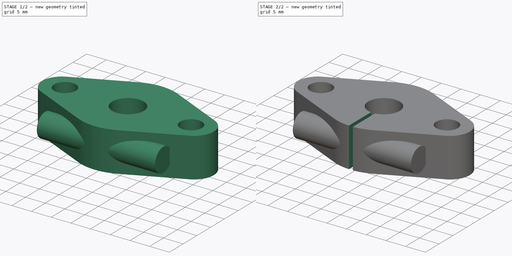
[diagram: build sequence overview — one tinted view per stage of 2, left to right]
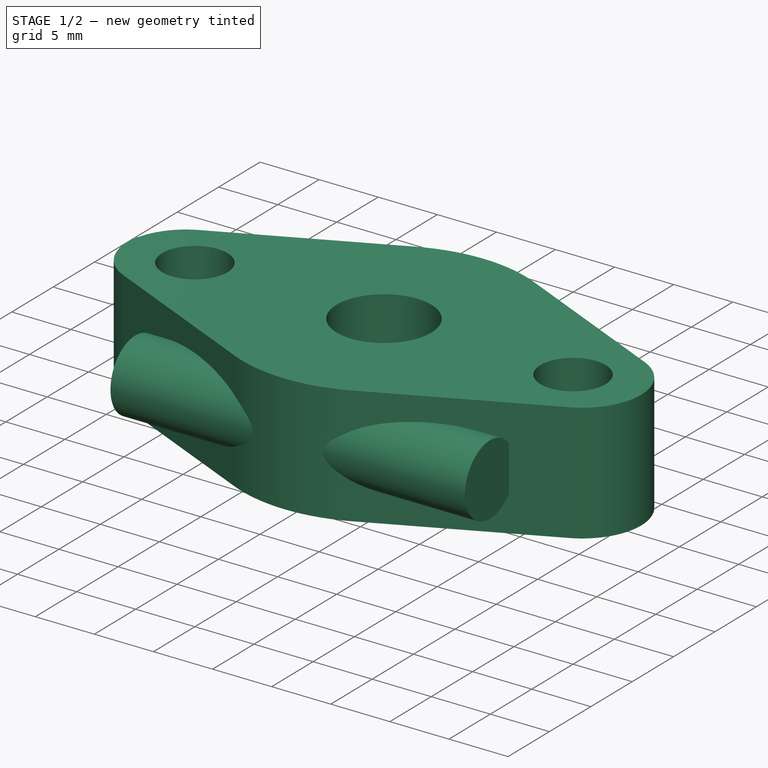
[diagram: stage 1 of 2 — iso view after this stage's code; geometry added in this stage tinted green]
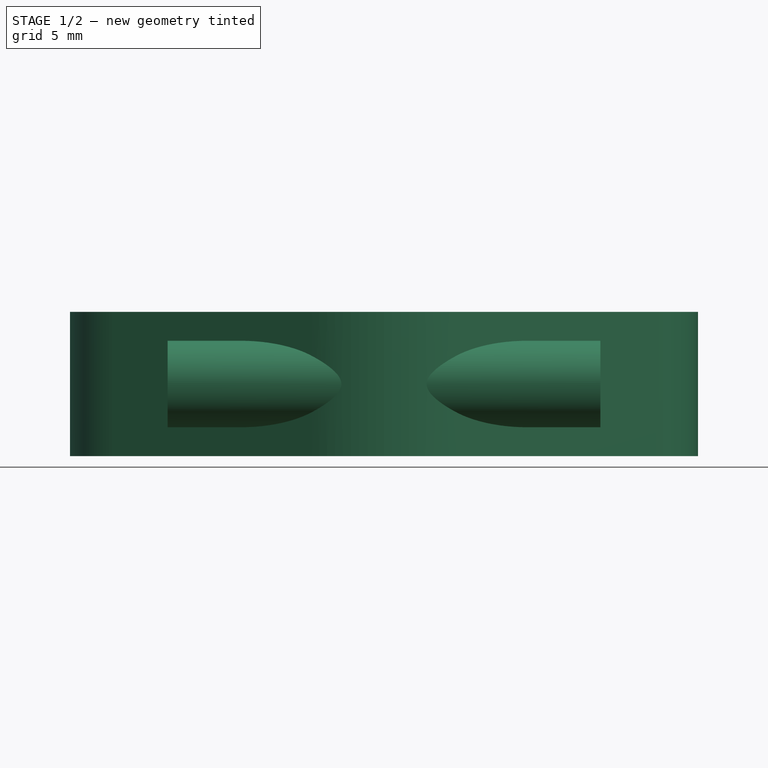
[diagram: stage 1 of 2 — front view after this stage's code; geometry added in this stage tinted green]
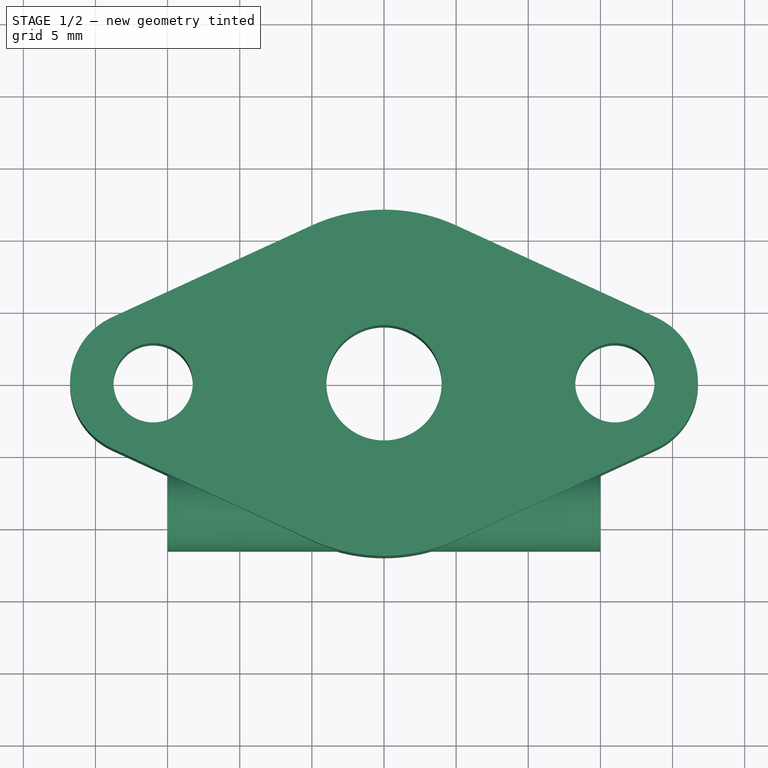
[diagram: stage 1 of 2 — top view after this stage's code; geometry added in this stage tinted green]
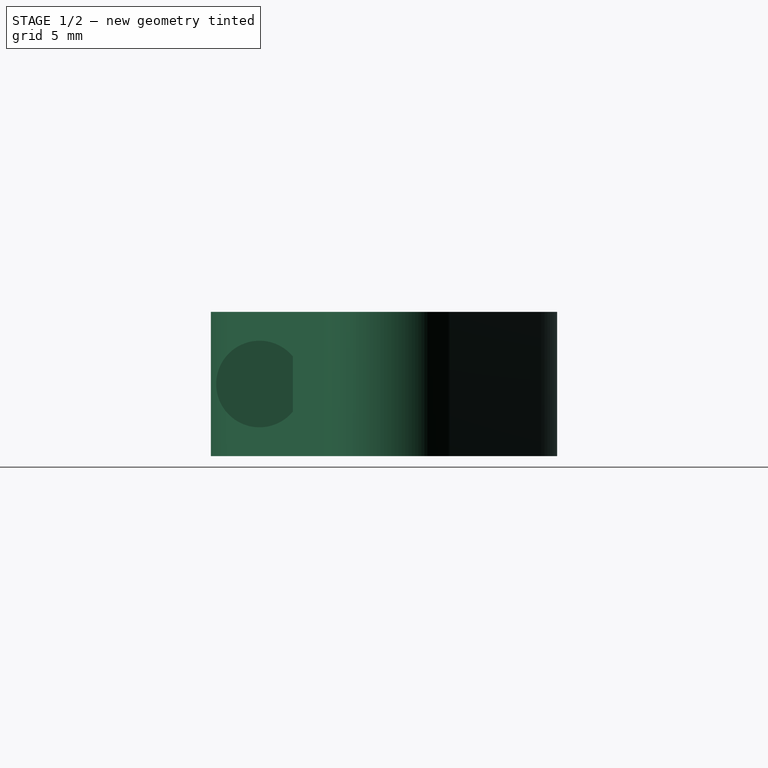
[diagram: stage 1 of 2 — right view after this stage's code; geometry added in this stage tinted green]
FCSTD DOCUMENT  (FreeCAD 0.19R)
Label: support_shaft_horiz_8mm
License: All rights reserved
LicenseURL: http://en.wikipedia.org/wiki/All_rights_reserved
objects: PartDesign::CoordinateSystem×6, Sketcher::SketchObject×3, PartDesign::Pad×2, PartDesign::Pocket×1, PartDesign::Body×1
note: 16 computed .brp shape members not serialized (recipe doc carries the construction recipe); baked Part::Feature solids carry a one-line shape summary decoded from their .brp

FEATURE [Sketcher::SketchObject] Sketch
  FullyConstrained = true
  MapMode = 5
  Support = -> [XY_Plane]
  sketch-geometry (14):
    g0: Circle CenterX=0 CenterY=0 CenterZ=0 NormalX=0 NormalY=0 NormalZ=1 AngleXU=0 Radius=4
    g1: ArcOfCircle CenterX=16.76 CenterY=0 CenterZ=0 NormalX=0 NormalY=0 NormalZ=1 AngleXU=0 Radius=5 StartAngle=5.14326 EndAngle=7.42311
    g2: ArcOfCircle CenterX=-16.76 CenterY=0 CenterZ=0 NormalX=0 NormalY=0 NormalZ=1 AngleXU=0 Radius=5 StartAngle=2.00167 EndAngle=4.28151
    g3: GeomPoint X=-21.76 Y=0 Z=0
    g4: LineSegment StartX=5.01193 StartY=10.9032 StartZ=0 EndX=18.8483 EndY=4.54301 EndZ=0
    g5: LineSegment StartX=-18.8483 StartY=4.54301 StartZ=0 EndX=-5.01193 EndY=10.9032 EndZ=0
    g6: ArcOfCircle CenterX=0 CenterY=0 CenterZ=0 NormalX=0 NormalY=0 NormalZ=1 AngleXU=0 Radius=12 StartAngle=1.13993 EndAngle=2.00167
    g7: ArcOfCircle CenterX=0 CenterY=0 CenterZ=0 NormalX=0 NormalY=0 NormalZ=1 AngleXU=0 Radius=12 StartAngle=4.28152 EndAngle=5.14326
    g8: GeomPoint X=21.76 Y=0 Z=0
    g9: Circle CenterX=-16 CenterY=0 CenterZ=0 NormalX=0 NormalY=0 NormalZ=1 AngleXU=0 Radius=2.75
    g10: Circle CenterX=16 CenterY=0 CenterZ=0 NormalX=0 NormalY=0 NormalZ=1 AngleXU=0 Radius=2.75
    g11: Circle CenterX=0 CenterY=0 CenterZ=0 NormalX=0 NormalY=0 NormalZ=1 AngleXU=0 Radius=12
    g12: LineSegment StartX=-18.8483 StartY=-4.543 StartZ=0 EndX=-5.01194 EndY=-10.9032 EndZ=0
    g13: LineSegment StartX=5.01192 StartY=-10.9032 StartZ=0 EndX=18.8483 EndY=-4.54301 EndZ=0
  constraints (34):
    c: Diameter(g0) = 8
    c: Equal(g2,g1)
    c: PointOnObject(g3,g2)
    c: Tangent(g6,g4) = 1.5708
    c: Tangent(g2,g5) = 1.5708
    c: Tangent(g1,g4) = 1.5708
    c: Coincident(g6,g0)
    c: Horizontal(g3,g0)
    c: Tangent(g6,g5) = 1.5708
    c: Coincident(g7,g0)
    c: Horizontal(g0,g8)
    c: PointOnObject(g8,g1)
    c: DistanceX(g3,g8) = 43.52
    c: Symmetric(g9,g10,g0)
    c: Diameter(g9) = 5.5
    c: Horizontal(g9,g0)
    c: DistanceX(g9,g10) = 32
    c: Coincident(g0,g11)
    c: Diameter(g11) = 24
    c: PointOnObject(g4,g11)
    c: Coincident(g0,g-1)
    c: PointOnObject(g7,g11)
    c: Coincident(g12,g2)
    c: Coincident(g12,g7)
    c: Coincident(g13,g7)
    c: Coincident(g13,g1)
    c: Tangent(g1,g13)
    c: Tangent(g12,g2)
    c: Tangent(g7,g12)
    c: Symmetric(g2,g1,g0)
    c: Horizontal(g1,g0)
    c: Diameter(g1) = 10
    c: Tangent(g13,g7)
    c: Equal(g10,g9)
FEATURE [PartDesign::Pad] Pad
  Direction = (1,1,1)
  Length = 10
  Length2 = 100
  Midplane = true
  Profile = -> Sketch
  Type = 0
FEATURE [Sketcher::SketchObject] Sketch001
  FullyConstrained = true
  MapMode = 5
  Placement = pos=(0,0,0) rot=(0.57735,0.57735,0.57735;2.0944rad)
  Support = -> [YZ_Plane]
  sketch-geometry (1):
    g0: Circle CenterX=-8.63 CenterY=0 CenterZ=0 NormalX=0 NormalY=0 NormalZ=1 AngleXU=0 Radius=3
  constraints (3):
    c: PointOnObject(g0,g-1)
    c: Radius(g0) = 3
    c: DistanceX(g0,g-1) = 8.63
FEATURE [PartDesign::Pad] Pad001
  BaseFeature = -> Pad
  Direction = (1,1,1)
  Length = 30
  Length2 = 100
  Midplane = true
  Profile = -> Sketch001
  Type = 0
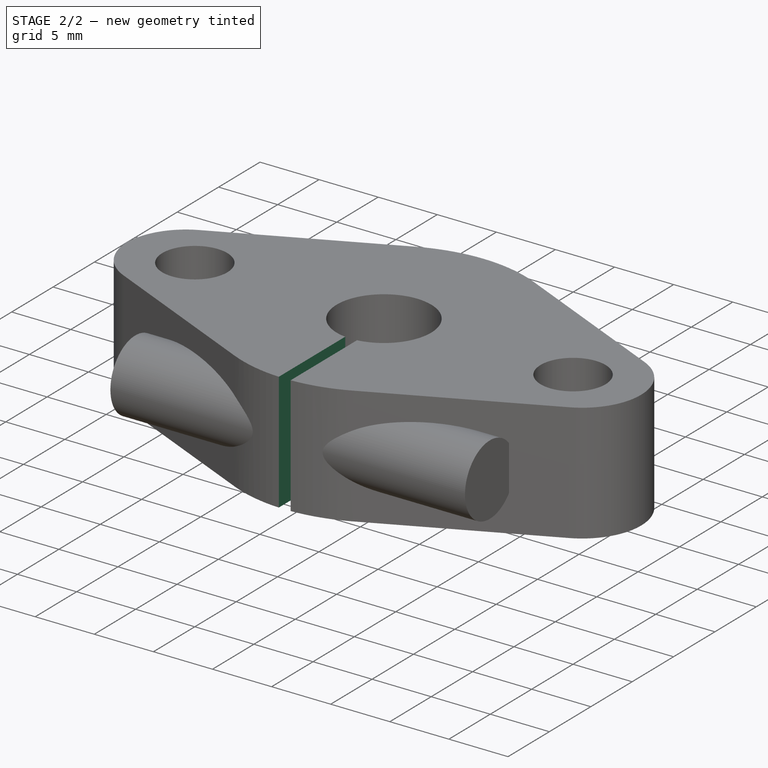
[diagram: stage 2 of 2 — iso view after this stage's code; geometry added in this stage tinted green]
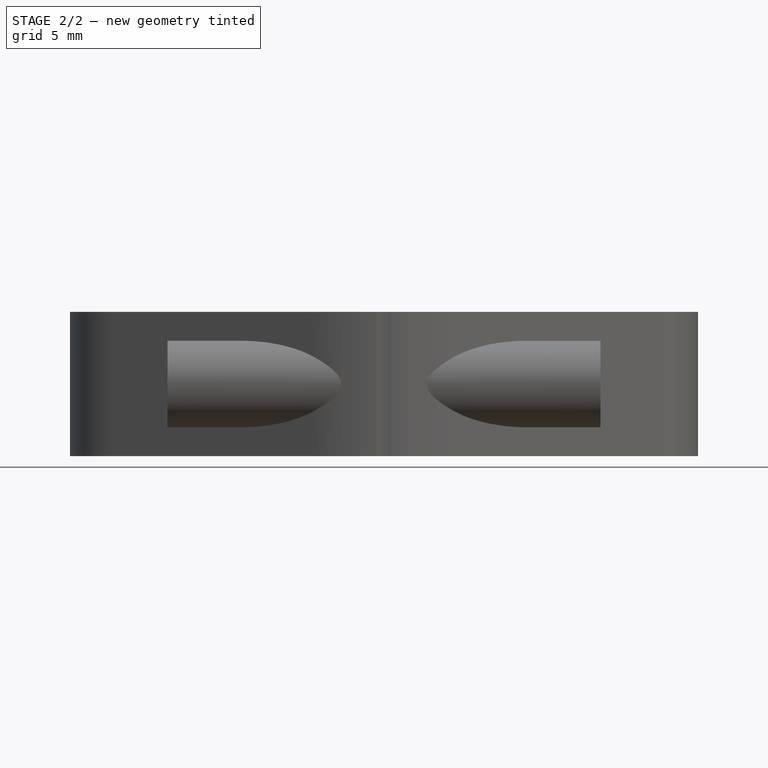
[diagram: stage 2 of 2 — front view after this stage's code; geometry added in this stage tinted green]
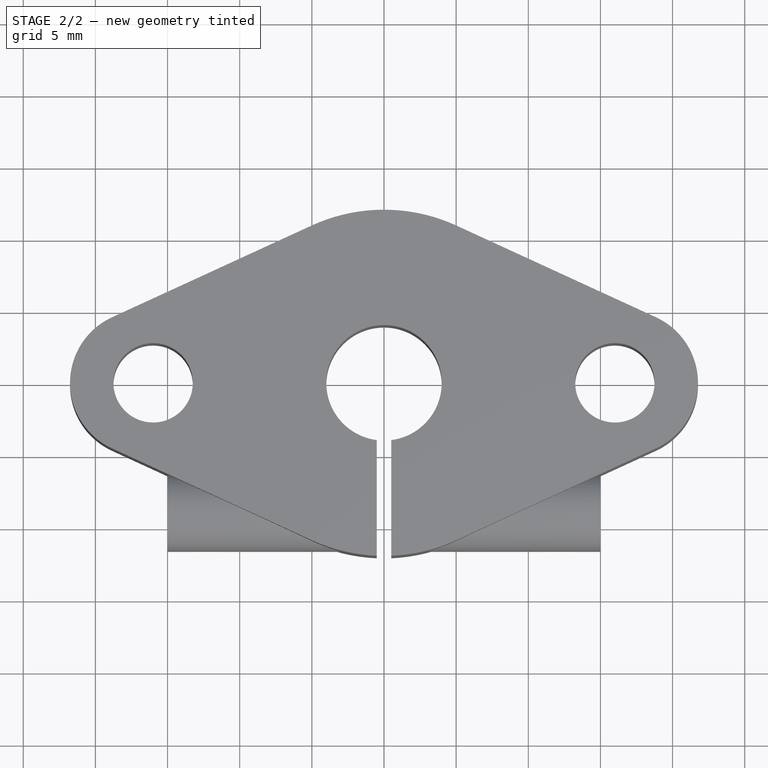
[diagram: stage 2 of 2 — top view after this stage's code; geometry added in this stage tinted green]
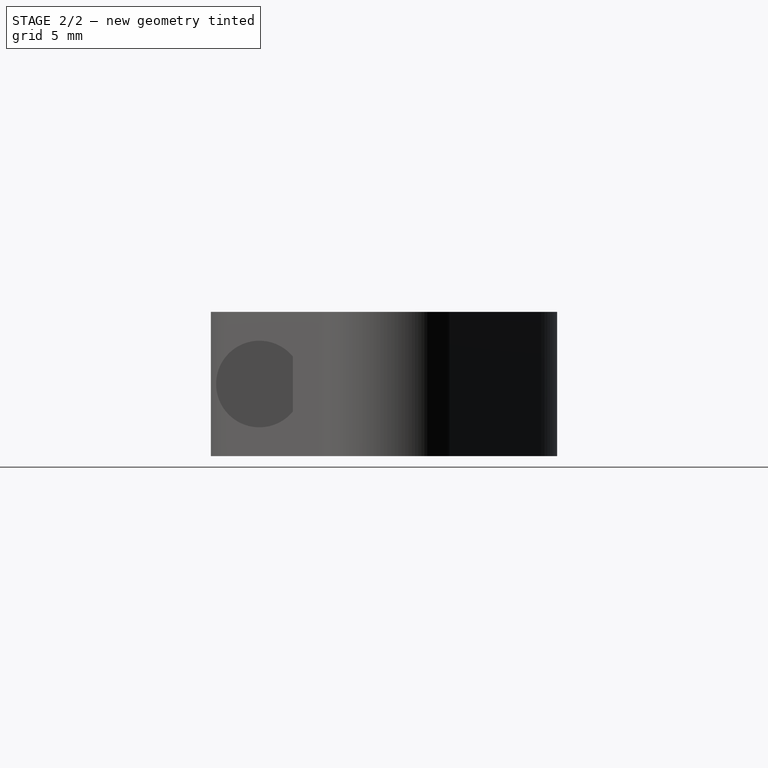
[diagram: stage 2 of 2 — right view after this stage's code; geometry added in this stage tinted green]
FEATURE [Sketcher::SketchObject] Sketch002
  FullyConstrained = true
  MapMode = 5
  Placement = pos=(0,0,0) rot=(1,0,0;1.5708rad)
  Support = -> [XZ_Plane]
  sketch-geometry (4):
    g0: LineSegment StartX=-0.5 StartY=-19.575 StartZ=0 EndX=0.5 EndY=-19.575 EndZ=0
    g1: LineSegment StartX=0.5 StartY=-19.575 StartZ=0 EndX=0.5 EndY=19.575 EndZ=0
    g2: LineSegment StartX=0.5 StartY=19.575 StartZ=0 EndX=-0.5 EndY=19.575 EndZ=0
    g3: LineSegment StartX=-0.5 StartY=19.575 StartZ=0 EndX=-0.5 EndY=-19.575 EndZ=0
  constraints (11):
    c: Coincident(g0,g1)
    c: Coincident(g1,g2)
    c: Coincident(g2,g3)
    c: Coincident(g3,g0)
    c: Horizontal(g0)
    c: Horizontal(g2)
    c: Vertical(g1)
    c: Vertical(g3)
    c: Symmetric(g2,g0,g-1)
    c: DistanceX(g2,g2) = 1
    c: DistanceY(g1,g1) = 39.15
FEATURE [PartDesign::Pocket] Pocket
  BaseFeature = -> Pad001
  Length = 5
  Length2 = 100
  Profile = -> Sketch002
  Reversed = true
  Type = 1
FEATURE [PartDesign::CoordinateSystem] Local_CS  label="local_left"
  AttacherType = Attacher::AttachEngine3D
  MapMode = 11
  Placement = pos=(-16,0,5) rot=(0,0,1;1.5708rad)
  Support = -> [Pad]
FEATURE [PartDesign::CoordinateSystem] Local_CS001  label="local_right"
  AttacherType = Attacher::AttachEngine3D
  MapMode = 11
  Placement = pos=(0,0,-5) rot=(0,0,1;1.5708rad)
  Support = -> [Pad]
FEATURE [PartDesign::CoordinateSystem] Local_CS002
  AttacherType = Attacher::AttachEngine3D
  MapMode = 11
  Placement = pos=(16,0,5) rot=(0,0,1;1.5708rad)
  Support = -> [Pad]
FEATURE [PartDesign::CoordinateSystem] Local_CS003
  AttacherType = Attacher::AttachEngine3D
  MapMode = 11
  Placement = pos=(-16,0,-5) rot=(0,0,1;1.5708rad)
  Support = -> [Pad]
FEATURE [PartDesign::CoordinateSystem] Local_CS004
  AttacherType = Attacher::AttachEngine3D
  MapMode = 11
  Placement = pos=(16,0,-5) rot=(0,0,1;1.5708rad)
  Support = -> [Pad]
FEATURE [PartDesign::CoordinateSystem] Local_CS005
  AttacherType = Attacher::AttachEngine3D
  MapMode = 11
  Placement = pos=(0,0,5) rot=(0,0,1;1.5708rad)
  Support = -> [Pad]
FEATURE [PartDesign::Body] Body
  Group = -> [Sketch,Pad,Sketch001,Local_CS,Local_CS001,Local_CS002,Local_CS003,Local_CS004,Local_CS005,Pad001,Sketch002,Pocket]
  Origin = -> Origin
  Tip = -> Pad
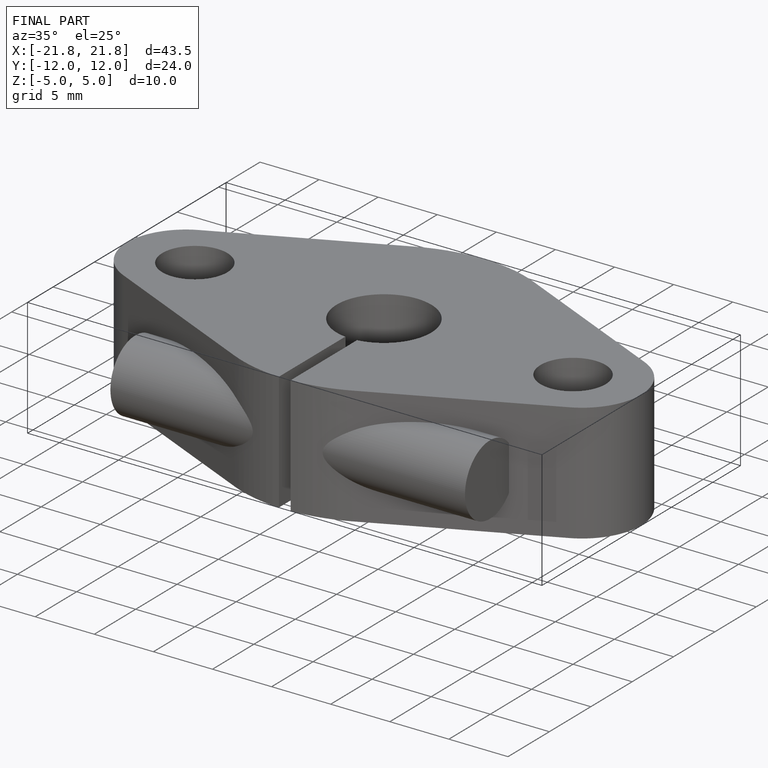
[diagram: finished part — iso view with bounding-box wireframe]
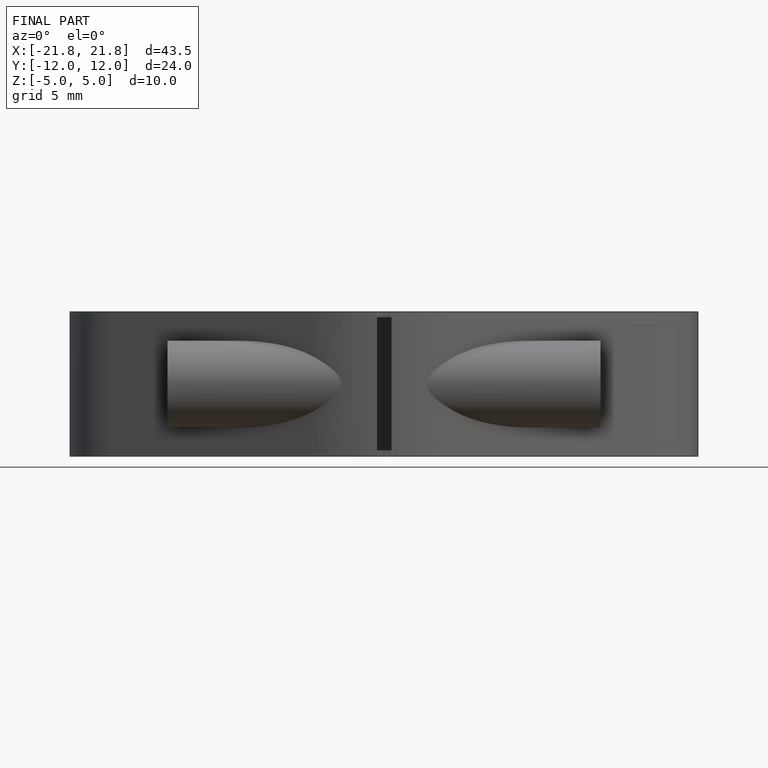
[diagram: finished part — front view with bounding-box wireframe]
